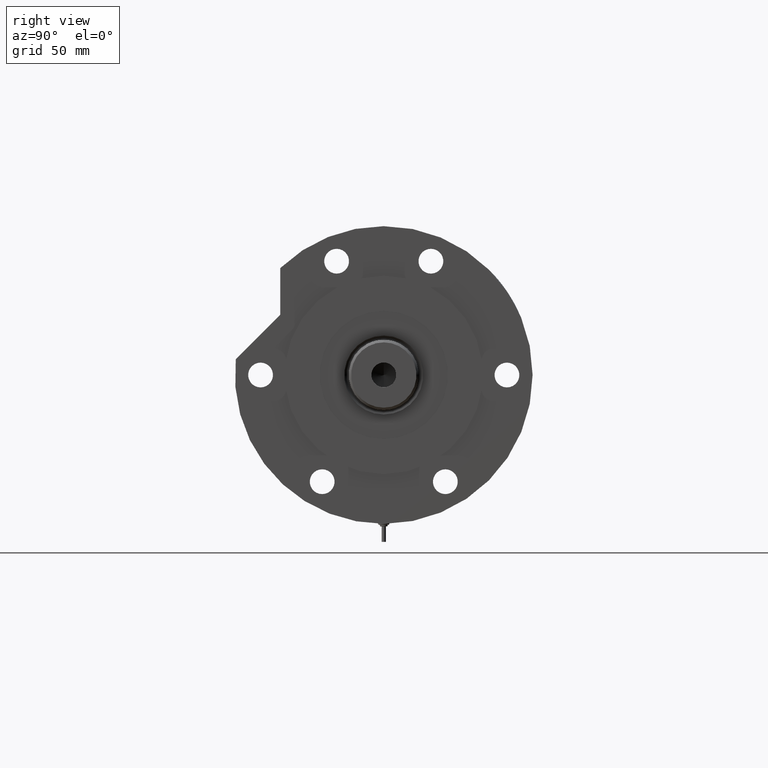
[diagram: clean part render]
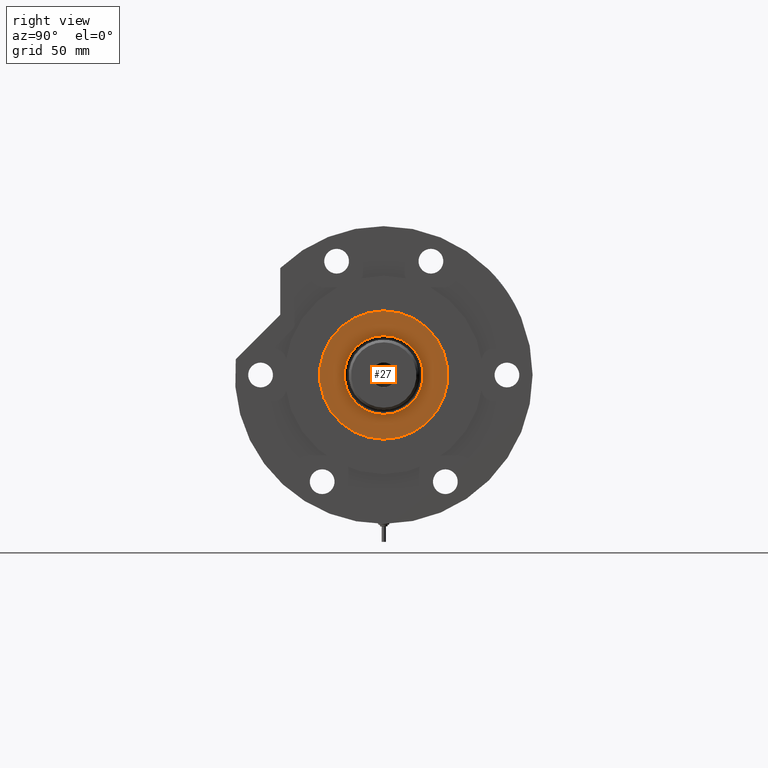
[diagram: same view with one face highlighted and labeled with its STEP entity id]
A machine part, right view. The second image highlights one B-rep face of the part: STEP entity #27.
In plain terms, the highlighted planar face has unit normal (1, 0, -0).
Its self-contained STEP definition (entity closure, byte-faithful):
#27 = ADVANCED_FACE ( 'NONE', ( #465, #3982 ), #7266, .T. ) ;
#238 = AXIS2_PLACEMENT_3D ( 'NONE', #6657, #2620, #5515 ) ;
#377 = VERTEX_POINT ( 'NONE', #2639 ) ;
#465 = FACE_BOUND ( 'NONE', #4317, .T. ) ;
#949 = VERTEX_POINT ( 'NONE', #2925 ) ;
#988 = DIRECTION ( 'NONE',  ( 0.000000000000000000, 0.000000000000000000, 1.000000000000000000 ) ) ;
#1245 = DIRECTION ( 'NONE',  ( 1.000000000000000000, 0.000000000000000000, 0.000000000000000000 ) ) ;
#1561 = DIRECTION ( 'NONE',  ( 1.000000000000000000, 0.000000000000000000, 0.000000000000000000 ) ) ;
#1697 = AXIS2_PLACEMENT_3D ( 'NONE', #4140, #5325, #1245 ) ;
#2134 = DIRECTION ( 'NONE',  ( -0.000000000000000000, -0.000000000000000000, -1.000000000000000000 ) ) ;
#2295 = EDGE_CURVE ( 'NONE', #377, #949, #2418, .T. ) ;
#2328 = ORIENTED_EDGE ( 'NONE', *, *, #3248, .T. ) ;
#2418 = CIRCLE ( 'NONE', #1697, 23.05000000000002913 ) ;
#2620 = DIRECTION ( 'NONE',  ( 0.000000000000000000, 0.000000000000000000, 1.000000000000000000 ) ) ;
#2639 = CARTESIAN_POINT ( 'NONE',  ( 23.05000000000002913, 0.000000000000000000, 59.89999999999999147 ) ) ;
#2703 = DIRECTION ( 'NONE',  ( 1.000000000000000000, 0.000000000000000000, 0.000000000000000000 ) ) ;
#2925 = CARTESIAN_POINT ( 'NONE',  ( -23.05000000000002913, 2.822810872034651791E-15, 59.89999999999999147 ) ) ;
#3248 = EDGE_CURVE ( 'NONE', #7006, #4835, #4382, .T. ) ;
#3378 = DIRECTION ( 'NONE',  ( 1.000000000000000000, 0.000000000000000000, 0.000000000000000000 ) ) ;
#3630 = ORIENTED_EDGE ( 'NONE', *, *, #4379, .T. ) ;
#3766 = CARTESIAN_POINT ( 'NONE',  ( 0.000000000000000000, 0.000000000000000000, 59.89999999999999147 ) ) ;
#3982 = FACE_OUTER_BOUND ( 'NONE', #4875, .T. ) ;
#4054 = EDGE_CURVE ( 'NONE', #949, #377, #6587, .T. ) ;
#4140 = CARTESIAN_POINT ( 'NONE',  ( 0.000000000000000000, 0.000000000000000000, 59.89999999999999147 ) ) ;
#4317 = EDGE_LOOP ( 'NONE', ( #4948, #5064 ) ) ;
#4379 = EDGE_CURVE ( 'NONE', #4835, #7006, #4400, .T. ) ;
#4382 = CIRCLE ( 'NONE', #7304, 37.50000000000000711 ) ;
#4400 = CIRCLE ( 'NONE', #5247, 37.50000000000000711 ) ;
#4835 = VERTEX_POINT ( 'NONE', #6890 ) ;
#4875 = EDGE_LOOP ( 'NONE', ( #2328, #3630 ) ) ;
#4948 = ORIENTED_EDGE ( 'NONE', *, *, #2295, .T. ) ;
#5064 = ORIENTED_EDGE ( 'NONE', *, *, #4054, .T. ) ;
#5247 = AXIS2_PLACEMENT_3D ( 'NONE', #7275, #7354, #3378 ) ;
#5325 = DIRECTION ( 'NONE',  ( -0.000000000000000000, -0.000000000000000000, -1.000000000000000000 ) ) ;
#5515 = DIRECTION ( 'NONE',  ( 1.000000000000000000, 0.000000000000000000, -0.000000000000000000 ) ) ;
#6587 = CIRCLE ( 'NONE', #6841, 23.05000000000002913 ) ;
#6657 = CARTESIAN_POINT ( 'NONE',  ( 0.000000000000000000, 0.000000000000000000, 59.89999999999999147 ) ) ;
#6841 = AXIS2_PLACEMENT_3D ( 'NONE', #7366, #2134, #1561 ) ;
#6890 = CARTESIAN_POINT ( 'NONE',  ( 37.50000000000000711, 4.592425496802575156E-15, 59.89999999999999147 ) ) ;
#7006 = VERTEX_POINT ( 'NONE', #7328 ) ;
#7266 = PLANE ( 'NONE',  #238 ) ;
#7275 = CARTESIAN_POINT ( 'NONE',  ( 0.000000000000000000, 0.000000000000000000, 59.89999999999999147 ) ) ;
#7304 = AXIS2_PLACEMENT_3D ( 'NONE', #3766, #988, #2703 ) ;
#7328 = CARTESIAN_POINT ( 'NONE',  ( -37.50000000000000711, 0.000000000000000000, 59.89999999999999147 ) ) ;
#7354 = DIRECTION ( 'NONE',  ( 0.000000000000000000, 0.000000000000000000, 1.000000000000000000 ) ) ;
#7366 = CARTESIAN_POINT ( 'NONE',  ( 0.000000000000000000, 0.000000000000000000, 59.89999999999999147 ) ) ;